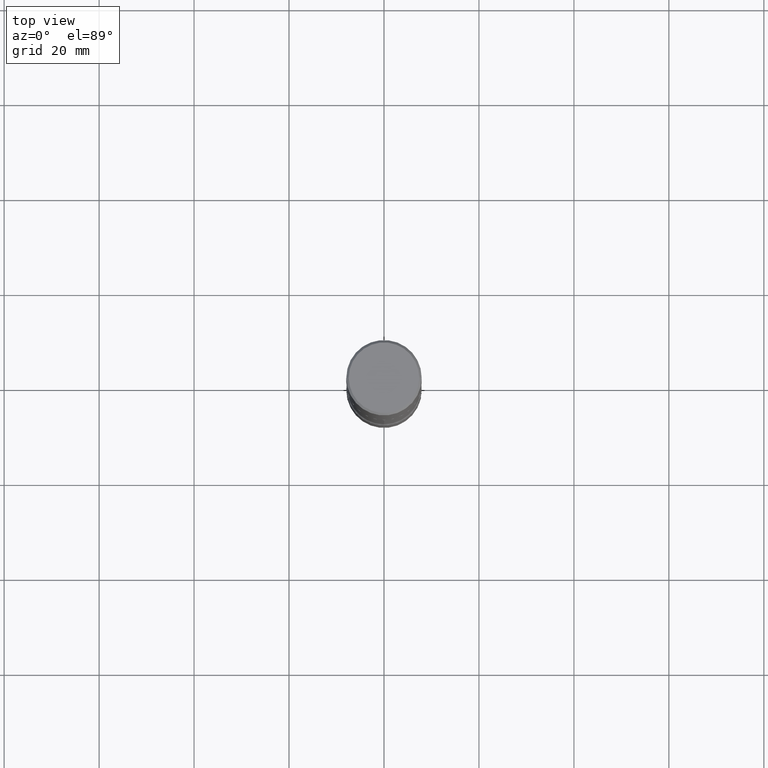
[diagram: clean part render]
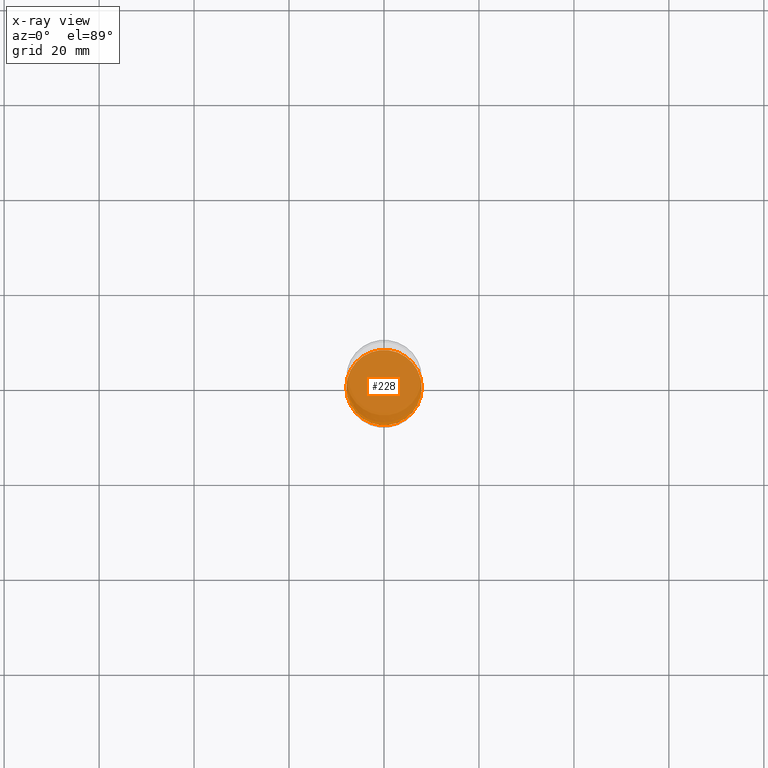
[diagram: x-ray — body ghosted, one internal face saturated and labeled with its STEP entity id]
A machine part, top view, then the same camera in x-ray: the body is ghosted and one INTERNAL B-rep face — a face not visible from any outside direction — is saturated and labeled: STEP entity #228.
In plain terms, the highlighted planar face has unit normal (0, -0, -1).
Its self-contained STEP definition (entity closure, byte-faithful):
#18 = CIRCLE ( 'NONE', #516, 0.3125000000000002220 ) ;
#35 = DIRECTION ( 'NONE',  ( 2.438088387897960049E-29, -3.491481338843145188E-15, -1.000000000000000000 ) ) ;
#49 = VERTEX_POINT ( 'NONE', #282 ) ;
#82 = PLANE ( 'NONE',  #410 ) ;
#85 = CARTESIAN_POINT ( 'NONE',  ( 1.161597682937939659E-28, -1.658453635950493708E-14, -4.749999999999999112 ) ) ;
#121 = CARTESIAN_POINT ( 'NONE',  ( 1.741520017396376925E-28, -8.279718458765584785E-15, -4.749999999999999112 ) ) ;
#127 = VERTEX_POINT ( 'NONE', #355 ) ;
#163 = CIRCLE ( 'NONE', #183, 0.3125000000000002220 ) ;
#171 = DIRECTION ( 'NONE',  ( -1.000000000000000000, 6.982962677686265922E-15, -4.876176775795935793E-29 ) ) ;
#183 = AXIS2_PLACEMENT_3D ( 'NONE', #85, #300, #230 ) ;
#228 = ADVANCED_FACE ( 'NONE', ( #544 ), #82, .F. ) ;
#230 = DIRECTION ( 'NONE',  ( 1.000000000000000000, -6.982962677686264344E-15, 0.000000000000000000 ) ) ;
#239 = EDGE_CURVE ( 'NONE', #49, #127, #18, .T. ) ;
#253 = CARTESIAN_POINT ( 'NONE',  ( 1.161597682937939659E-28, -1.658453635950493708E-14, -4.749999999999999112 ) ) ;
#282 = CARTESIAN_POINT ( 'NONE',  ( -0.3125000000000002220, -1.647643652025473009E-14, -4.749999999999999112 ) ) ;
#300 = DIRECTION ( 'NONE',  ( -2.445468806185136597E-29, 3.491481338843145583E-15, 1.000000000000000000 ) ) ;
#307 = EDGE_LOOP ( 'NONE', ( #445, #552 ) ) ;
#355 = CARTESIAN_POINT ( 'NONE',  ( 0.3125000000000002220, -1.876671219628189700E-14, -4.749999999999999112 ) ) ;
#394 = EDGE_CURVE ( 'NONE', #127, #49, #163, .T. ) ;
#410 = AXIS2_PLACEMENT_3D ( 'NONE', #121, #35, #171 ) ;
#445 = ORIENTED_EDGE ( 'NONE', *, *, #394, .T. ) ;
#455 = DIRECTION ( 'NONE',  ( -2.445468806185136597E-29, 3.491481338843145583E-15, 1.000000000000000000 ) ) ;
#516 = AXIS2_PLACEMENT_3D ( 'NONE', #253, #455, #548 ) ;
#544 = FACE_OUTER_BOUND ( 'NONE', #307, .T. ) ;
#548 = DIRECTION ( 'NONE',  ( 1.000000000000000000, -6.982962677686264344E-15, 0.000000000000000000 ) ) ;
#552 = ORIENTED_EDGE ( 'NONE', *, *, #239, .T. ) ;